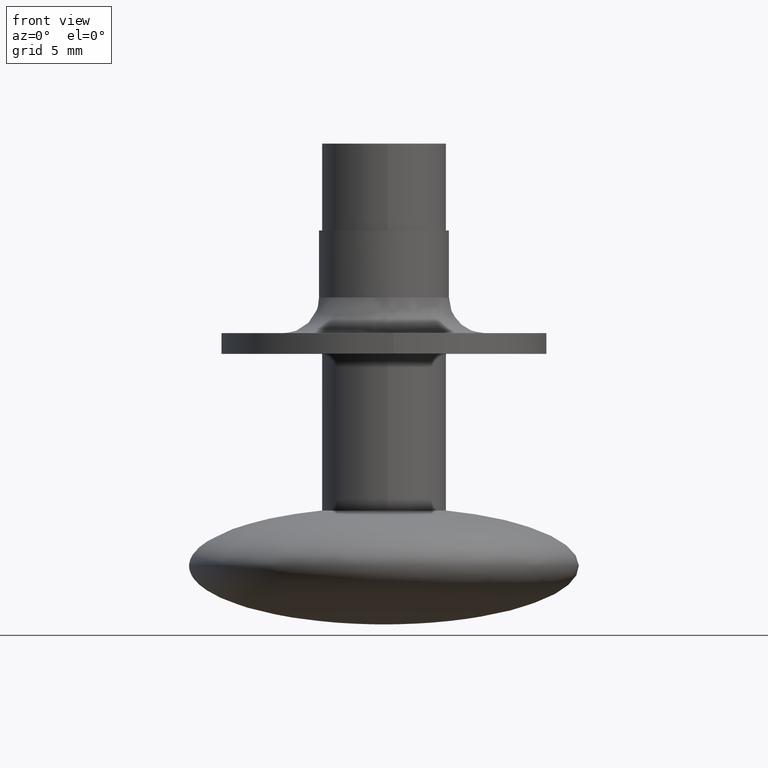
[diagram: clean part render]
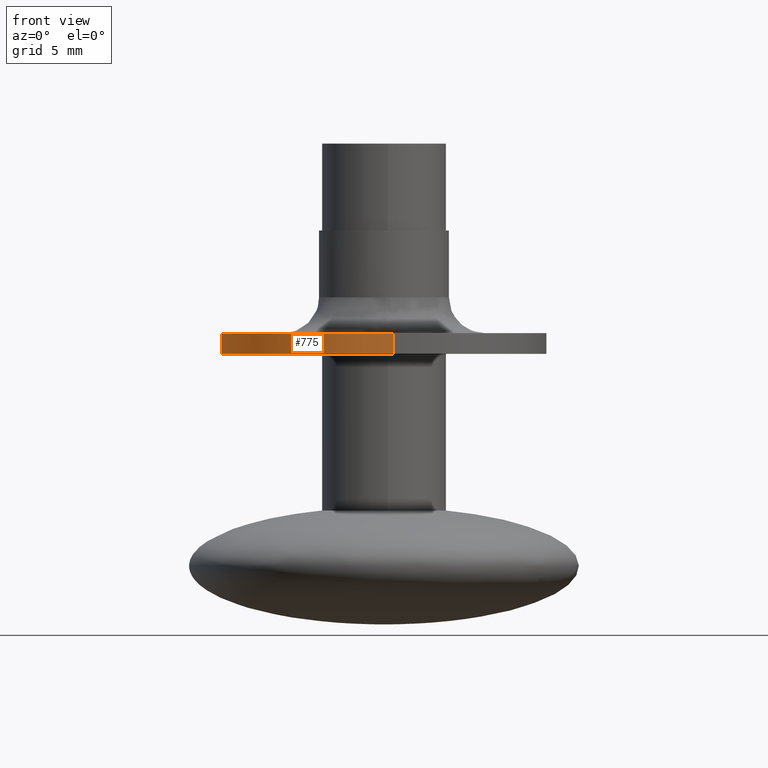
[diagram: same view with one face highlighted and labeled with its STEP entity id]
A machine part, front view. The second image highlights one B-rep face of the part: STEP entity #775.
In plain terms, the highlighted face is a freeform B-spline surface patch.
Its self-contained STEP definition (entity closure, byte-faithful):
#612=CARTESIAN_POINT('',(-1.475427805725460,12.412619094699240,-14.584758999999901));
#613=VERTEX_POINT('',#612);
#631=CARTESIAN_POINT('',(0.763103255939634,-12.476685193622631,-14.584758999999851));
#632=VERTEX_POINT('',#631);
#646=CARTESIAN_POINT('',(0.763103298007722,-12.476685191049659,-16.184758999999900));
#647=VERTEX_POINT('',#646);
#648=CARTESIAN_POINT('',(0.763103255939634,-12.476685193622631,-14.584758999999851));
#649=CARTESIAN_POINT('',(0.763103298007722,-12.476685191049659,-16.184758999999900));
#650=QUASI_UNIFORM_CURVE('',1,(#648,#649),.UNSPECIFIED.,.F.,.U.);
#651=EDGE_CURVE('',#632,#647,#650,.T.);
#668=CARTESIAN_POINT('',(-1.475427807259749,12.412619094516860,-16.184758999999900));
#669=VERTEX_POINT('',#668);
#685=CARTESIAN_POINT('',(-1.475427805725460,12.412619094699240,-14.584758999999901));
#686=CARTESIAN_POINT('',(-1.475427807259749,12.412619094516860,-16.184758999999900));
#687=QUASI_UNIFORM_CURVE('',1,(#685,#686),.UNSPECIFIED.,.F.,.U.);
#688=EDGE_CURVE('',#613,#669,#687,.T.);
#693=CARTESIAN_POINT('',(0.763106744185712,-12.476684980273340,-14.544758999999900));
#694=CARTESIAN_POINT('',(-11.713578236087622,-13.239791724459048,-14.544758999999905));
#695=CARTESIAN_POINT('',(-12.476684980273340,-0.763106744185712,-14.544758999999900));
#696=CARTESIAN_POINT('',(-13.197327459156595,11.019293635493762,-14.544758999999894));
#697=CARTESIAN_POINT('',(-1.475427933209480,12.412619079545834,-14.544758999999900));
#698=CARTESIAN_POINT('',(0.763106744185712,-12.476684980273340,-16.225758999999901));
#699=CARTESIAN_POINT('',(-11.713578236087622,-13.239791724459048,-16.225758999999908));
#700=CARTESIAN_POINT('',(-12.476684980273340,-0.763106744185712,-16.225758999999901));
#701=CARTESIAN_POINT('',(-13.197327459156595,11.019293635493762,-16.225758999999904));
#702=CARTESIAN_POINT('',(-1.475427933209480,12.412619079545834,-16.225758999999904));
#710=(BOUNDED_SURFACE()B_SPLINE_SURFACE(2,1,((#693,#698),(#694,#699),(#695,#700),(#696,#701),(#697,#702)),.UNSPECIFIED.,.F.,.F.,.U.)B_SPLINE_SURFACE_WITH_KNOTS((3,2,3),(2,2),(0.0,20.710678118654752,40.592929112563311),(0.0,1.0),.UNSPECIFIED.)GEOMETRIC_REPRESENTATION_ITEM()RATIONAL_B_SPLINE_SURFACE(((1.0,1.0),(0.707106781186548,0.707106781186548),(1.0,1.0),(0.718822509939086,0.718822509939086),(0.977505800795127,0.977505800795127)))REPRESENTATION_ITEM('')SURFACE());
#711=CARTESIAN_POINT('',(-12.500000000000000,0.0,-14.584758999999901));
#712=VERTEX_POINT('',#711);
#713=CARTESIAN_POINT('',(-12.500000000000000,0.0,-14.584758999999901));
#714=CARTESIAN_POINT('',(-12.500000000000000,11.102181804047794,-14.584758999999909));
#715=CARTESIAN_POINT('',(-1.475427805725460,12.412619094699242,-14.584758999999901));
#723=(BOUNDED_CURVE()B_SPLINE_CURVE(2,(#713,#714,#715),.UNSPECIFIED.,.F.,.U.)B_SPLINE_CURVE_WITH_KNOTS((3,3),(0.0,0.229562476987146),.UNSPECIFIED.)CURVE()GEOMETRIC_REPRESENTATION_ITEM()RATIONAL_B_SPLINE_CURVE((1.0,0.731050828785783,0.956026760992171))REPRESENTATION_ITEM(''));
#724=EDGE_CURVE('',#712,#613,#723,.T.);
#725=ORIENTED_EDGE('',*,*,#724,.T.);
#726=ORIENTED_EDGE('',*,*,#688,.T.);
#727=CARTESIAN_POINT('',(-12.500000000000000,0.0,-16.184758999999900));
#728=VERTEX_POINT('',#727);
#729=CARTESIAN_POINT('',(-12.500000000000000,0.0,-16.184758999999900));
#730=CARTESIAN_POINT('',(-12.499999999999998,11.102181801283853,-16.184758999999897));
#731=CARTESIAN_POINT('',(-1.475427807259750,12.412619094516867,-16.184758999999904));
#739=(BOUNDED_CURVE()B_SPLINE_CURVE(2,(#729,#730,#731),.UNSPECIFIED.,.F.,.U.)B_SPLINE_CURVE_WITH_KNOTS((3,3),(0.0,0.229562476945366),.UNSPECIFIED.)CURVE()GEOMETRIC_REPRESENTATION_ITEM()RATIONAL_B_SPLINE_CURVE((1.0,0.731050828834731,0.956026760910281))REPRESENTATION_ITEM(''));
#740=EDGE_CURVE('',#728,#669,#739,.T.);
#741=ORIENTED_EDGE('',*,*,#740,.F.);
#742=CARTESIAN_POINT('',(0.763103298007722,-12.476685191049659,-16.184758999999904));
#743=CARTESIAN_POINT('',(0.381907813312029,-12.499999999999998,-16.184758999999904));
#744=CARTESIAN_POINT('',(0.0,-12.500000000000000,-16.184758999999900));
#745=CARTESIAN_POINT('',(-12.499999999999998,-12.499999999999998,-16.184758999999897));
#746=CARTESIAN_POINT('',(-12.500000000000000,0.0,-16.184758999999900));
#754=(BOUNDED_CURVE()B_SPLINE_CURVE(2,(#742,#743,#744,#745,#746),.UNSPECIFIED.,.F.,.U.)B_SPLINE_CURVE_WITH_KNOTS((3,2,3),(0.739333009901020,0.750000000000000,1.0),.UNSPECIFIED.)CURVE()GEOMETRIC_REPRESENTATION_ITEM()RATIONAL_B_SPLINE_CURVE((0.976072143815642,0.987502843739434,1.0,0.707106781186547,1.0))REPRESENTATION_ITEM(''));
#755=EDGE_CURVE('',#647,#728,#754,.T.);
#756=ORIENTED_EDGE('',*,*,#755,.F.);
#757=ORIENTED_EDGE('',*,*,#651,.F.);
#758=CARTESIAN_POINT('',(0.763103255939634,-12.476685193622632,-14.584758999999853));
#759=CARTESIAN_POINT('',(0.381907792219007,-12.500000000000004,-14.584758999999902));
#760=CARTESIAN_POINT('',(0.0,-12.500000000000000,-14.584758999999901));
#761=CARTESIAN_POINT('',(-12.499999999999998,-12.499999999999998,-14.584758999999902));
#762=CARTESIAN_POINT('',(-12.500000000000000,0.0,-14.584758999999901));
#770=(BOUNDED_CURVE()B_SPLINE_CURVE(2,(#758,#759,#760,#761,#762),.UNSPECIFIED.,.F.,.U.)B_SPLINE_CURVE_WITH_KNOTS((3,2,3),(0.739333010482802,0.750000000000000,1.0),.UNSPECIFIED.)CURVE()GEOMETRIC_REPRESENTATION_ITEM()RATIONAL_B_SPLINE_CURVE((0.976072145062513,0.987502844421034,1.0,0.707106781186547,1.0))REPRESENTATION_ITEM(''));
#771=EDGE_CURVE('',#632,#712,#770,.T.);
#772=ORIENTED_EDGE('',*,*,#771,.T.);
#773=EDGE_LOOP('',(#725,#726,#741,#756,#757,#772));
#774=FACE_OUTER_BOUND('',#773,.T.);
#775=ADVANCED_FACE('',(#774),#710,.T.);